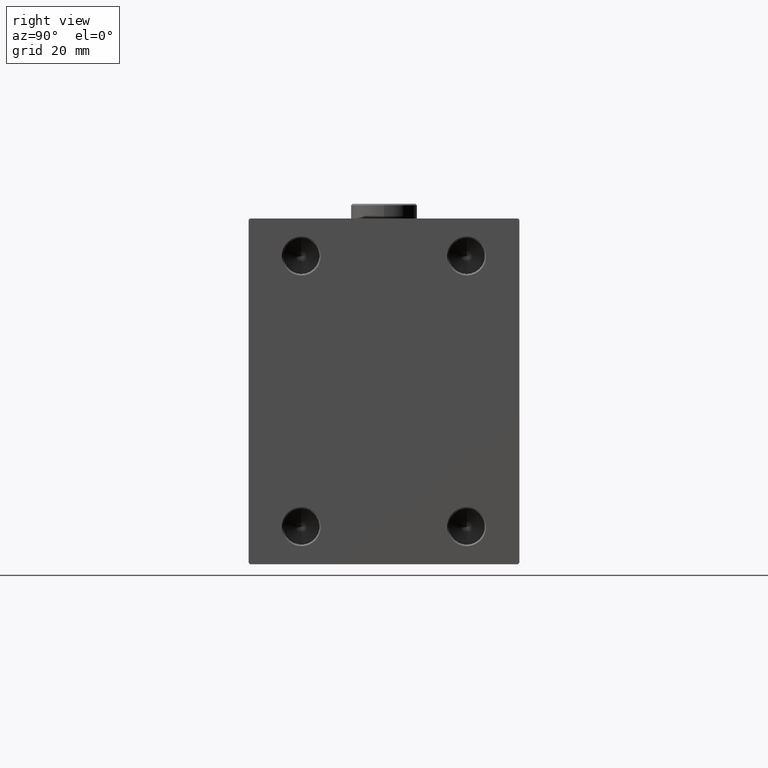
[diagram: clean part render]
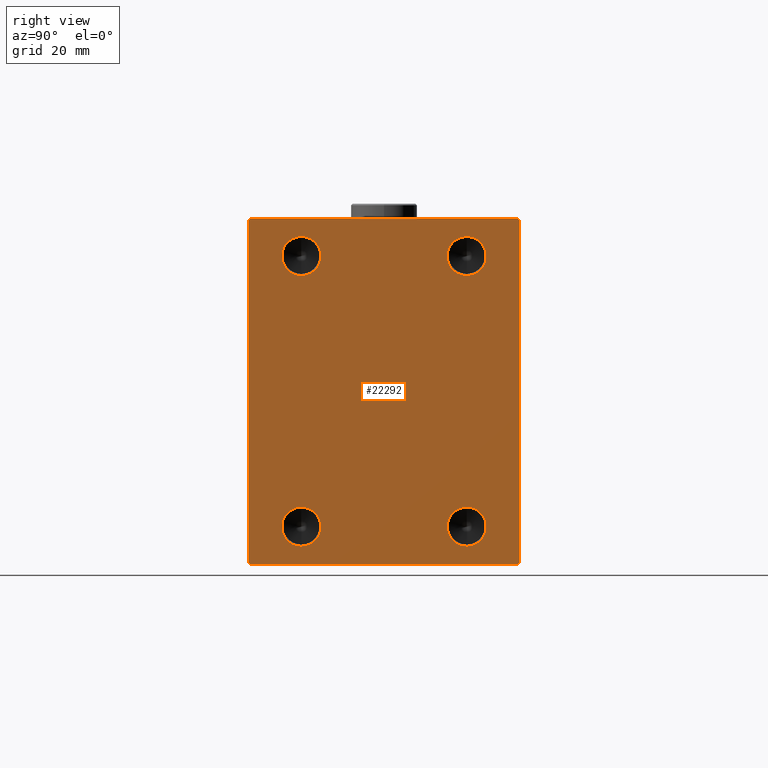
[diagram: same view with one face highlighted and labeled with its STEP entity id]
A machine part, right view. The second image highlights one B-rep face of the part: STEP entity #22292.
In plain terms, the highlighted planar face has unit normal (1, 0, 0).
Its self-contained STEP definition (entity closure, byte-faithful):
#253 = CARTESIAN_POINT ( 'NONE',  ( 178.0000000000000000, -27.49999999999999645, 51.49999999999996447 ) ) ;
#818 = VERTEX_POINT ( 'NONE', #2873 ) ;
#865 = EDGE_LOOP ( 'NONE', ( #3378, #43779 ) ) ;
#1370 = EDGE_LOOP ( 'NONE', ( #3134, #14931 ) ) ;
#1621 = DIRECTION ( 'NONE',  ( 0.000000000000000000, 0.000000000000000000, -1.000000000000000000 ) ) ;
#1756 = CARTESIAN_POINT ( 'NONE',  ( 178.0000000000000000, -45.00000000000000000, 57.49999999999999289 ) ) ;
#1778 = EDGE_LOOP ( 'NONE', ( #9437, #6071 ) ) ;
#2549 = ORIENTED_EDGE ( 'NONE', *, *, #11310, .F. ) ;
#2873 = CARTESIAN_POINT ( 'NONE',  ( 178.0000000000000000, 27.50000000000000355, 51.49999999999996447 ) ) ;
#2934 = CARTESIAN_POINT ( 'NONE',  ( 178.0000000000000000, -44.49999999999997158, -57.49999999999999289 ) ) ;
#3043 = EDGE_CURVE ( 'NONE', #27425, #11708, #42553, .T. ) ;
#3134 = ORIENTED_EDGE ( 'NONE', *, *, #21364, .F. ) ;
#3244 = ORIENTED_EDGE ( 'NONE', *, *, #27237, .T. ) ;
#3378 = ORIENTED_EDGE ( 'NONE', *, *, #17879, .F. ) ;
#4202 = EDGE_CURVE ( 'NONE', #11947, #6164, #43378, .T. ) ;
#4263 = VECTOR ( 'NONE', #22501, 1000.000000000000000 ) ;
#4458 = CARTESIAN_POINT ( 'NONE',  ( 178.0000000000000000, -27.49999999999999645, 44.99999999999998579 ) ) ;
#4462 = DIRECTION ( 'NONE',  ( -0.000000000000000000, 0.7071067811865279218, 0.7071067811865672237 ) ) ;
#5346 = EDGE_CURVE ( 'NONE', #18606, #11434, #23840, .T. ) ;
#5472 = DIRECTION ( 'NONE',  ( 0.000000000000000000, 0.000000000000000000, -1.000000000000000000 ) ) ;
#5579 = VECTOR ( 'NONE', #4462, 1000.000000000000000 ) ;
#6071 = ORIENTED_EDGE ( 'NONE', *, *, #33608, .F. ) ;
#6164 = VERTEX_POINT ( 'NONE', #36672 ) ;
#6401 = AXIS2_PLACEMENT_3D ( 'NONE', #44569, #13374, #33929 ) ;
#7643 = CARTESIAN_POINT ( 'NONE',  ( 178.0000000000000000, 45.00000000000001421, 57.00000000000000711 ) ) ;
#8026 = DIRECTION ( 'NONE',  ( 0.000000000000000000, 0.000000000000000000, -1.000000000000000000 ) ) ;
#8339 = CARTESIAN_POINT ( 'NONE',  ( 178.0000000000000000, -27.49999999999999645, -45.00000000000001421 ) ) ;
#8348 = PLANE ( 'NONE',  #14329 ) ;
#8562 = ORIENTED_EDGE ( 'NONE', *, *, #14474, .T. ) ;
#8601 = DIRECTION ( 'NONE',  ( 0.000000000000000000, 0.000000000000000000, -1.000000000000000000 ) ) ;
#8773 = CARTESIAN_POINT ( 'NONE',  ( 178.0000000000000000, 44.50000000000002842, -57.49999999999999289 ) ) ;
#8971 = DIRECTION ( 'NONE',  ( 1.000000000000000000, -0.000000000000000000, -0.000000000000000000 ) ) ;
#9095 = VERTEX_POINT ( 'NONE', #13387 ) ;
#9437 = ORIENTED_EDGE ( 'NONE', *, *, #3043, .F. ) ;
#9452 = DIRECTION ( 'NONE',  ( 0.000000000000000000, -0.7071067811865474617, -0.7071067811865474617 ) ) ;
#9904 = CARTESIAN_POINT ( 'NONE',  ( 178.0000000000000000, -51.00000000000000000, 51.00000000000000000 ) ) ;
#10494 = DIRECTION ( 'NONE',  ( 0.000000000000000000, -1.000000000000000000, -1.541976423090495140E-16 ) ) ;
#10982 = DIRECTION ( 'NONE',  ( 0.000000000000000000, 0.000000000000000000, -1.000000000000000000 ) ) ;
#11310 = EDGE_CURVE ( 'NONE', #9095, #41845, #15484, .T. ) ;
#11434 = VERTEX_POINT ( 'NONE', #25550 ) ;
#11498 = ORIENTED_EDGE ( 'NONE', *, *, #35856, .T. ) ;
#11708 = VERTEX_POINT ( 'NONE', #22044 ) ;
#11857 = CIRCLE ( 'NONE', #17778, 6.499999999999977796 ) ;
#11947 = VERTEX_POINT ( 'NONE', #12685 ) ;
#12034 = FACE_BOUND ( 'NONE', #865, .T. ) ;
#12649 = ORIENTED_EDGE ( 'NONE', *, *, #36163, .F. ) ;
#12685 = CARTESIAN_POINT ( 'NONE',  ( 178.0000000000000000, -45.00000000000000000, 56.99999999999999289 ) ) ;
#12791 = VERTEX_POINT ( 'NONE', #31745 ) ;
#13057 = VECTOR ( 'NONE', #5472, 1000.000000000000000 ) ;
#13374 = DIRECTION ( 'NONE',  ( 1.000000000000000000, -0.000000000000000000, -0.000000000000000000 ) ) ;
#13387 = CARTESIAN_POINT ( 'NONE',  ( 178.0000000000000000, -27.49999999999999645, 38.50000000000000711 ) ) ;
#14329 = AXIS2_PLACEMENT_3D ( 'NONE', #36972, #39994, #1621 ) ;
#14474 = EDGE_CURVE ( 'NONE', #14504, #18606, #27637, .T. ) ;
#14499 = CARTESIAN_POINT ( 'NONE',  ( 178.0000000000000000, -27.49999999999999645, 44.99999999999998579 ) ) ;
#14504 = VERTEX_POINT ( 'NONE', #23503 ) ;
#14931 = ORIENTED_EDGE ( 'NONE', *, *, #23861, .F. ) ;
#15157 = ORIENTED_EDGE ( 'NONE', *, *, #28651, .T. ) ;
#15348 = CARTESIAN_POINT ( 'NONE',  ( 178.0000000000000000, -45.00000000000000000, -57.49999999999999289 ) ) ;
#15484 = CIRCLE ( 'NONE', #19909, 6.499999999999977796 ) ;
#15774 = DIRECTION ( 'NONE',  ( -0.000000000000000000, -0.7071067811865474617, 0.7071067811865474617 ) ) ;
#16739 = DIRECTION ( 'NONE',  ( -0.000000000000000000, 0.7071067811865672237, -0.7071067811865279218 ) ) ;
#16765 = AXIS2_PLACEMENT_3D ( 'NONE', #8339, #36497, #18059 ) ;
#17282 = DIRECTION ( 'NONE',  ( 0.000000000000000000, 0.000000000000000000, -1.000000000000000000 ) ) ;
#17323 = ORIENTED_EDGE ( 'NONE', *, *, #4202, .T. ) ;
#17685 = DIRECTION ( 'NONE',  ( 1.000000000000000000, -0.000000000000000000, -0.000000000000000000 ) ) ;
#17778 = AXIS2_PLACEMENT_3D ( 'NONE', #39658, #28344, #8026 ) ;
#17879 = EDGE_CURVE ( 'NONE', #818, #43134, #11857, .T. ) ;
#18059 = DIRECTION ( 'NONE',  ( 0.000000000000000000, 0.000000000000000000, -1.000000000000000000 ) ) ;
#18606 = VERTEX_POINT ( 'NONE', #7643 ) ;
#18758 = DIRECTION ( 'NONE',  ( 1.000000000000000000, -0.000000000000000000, -0.000000000000000000 ) ) ;
#19725 = ORIENTED_EDGE ( 'NONE', *, *, #25360, .T. ) ;
#19909 = AXIS2_PLACEMENT_3D ( 'NONE', #14499, #39223, #17282 ) ;
#20505 = AXIS2_PLACEMENT_3D ( 'NONE', #4458, #18758, #8601 ) ;
#21364 = EDGE_CURVE ( 'NONE', #12791, #29553, #28293, .T. ) ;
#21743 = CIRCLE ( 'NONE', #23207, 6.499999999999977796 ) ;
#21870 = VECTOR ( 'NONE', #16739, 1000.000000000000000 ) ;
#21955 = VECTOR ( 'NONE', #15774, 1000.000000000000114 ) ;
#22044 = CARTESIAN_POINT ( 'NONE',  ( 178.0000000000000000, -27.49999999999999645, -51.49999999999999289 ) ) ;
#22292 = ADVANCED_FACE ( 'NONE', ( #12034, #30029, #22878, #33284, #36508 ), #8348, .T. ) ;
#22501 = DIRECTION ( 'NONE',  ( 0.000000000000000000, 1.000000000000000000, 0.000000000000000000 ) ) ;
#22552 = CARTESIAN_POINT ( 'NONE',  ( 178.0000000000000000, 27.50000000000000355, -45.00000000000001421 ) ) ;
#22757 = EDGE_CURVE ( 'NONE', #43134, #818, #21743, .T. ) ;
#22878 = FACE_BOUND ( 'NONE', #1778, .T. ) ;
#23015 = DIRECTION ( 'NONE',  ( 0.000000000000000000, 0.000000000000000000, -1.000000000000000000 ) ) ;
#23207 = AXIS2_PLACEMENT_3D ( 'NONE', #34309, #17685, #10982 ) ;
#23466 = CIRCLE ( 'NONE', #20505, 6.499999999999977796 ) ;
#23503 = CARTESIAN_POINT ( 'NONE',  ( 178.0000000000000000, 45.00000000000002842, -56.99999999999996447 ) ) ;
#23840 = LINE ( 'NONE', #41184, #21955 ) ;
#23861 = EDGE_CURVE ( 'NONE', #29553, #12791, #35019, .T. ) ;
#24484 = EDGE_CURVE ( 'NONE', #11434, #36895, #32177, .T. ) ;
#24892 = CIRCLE ( 'NONE', #16765, 6.499999999999977796 ) ;
#25185 = VECTOR ( 'NONE', #44776, 1000.000000000000000 ) ;
#25272 = CARTESIAN_POINT ( 'NONE',  ( 178.0000000000000000, 27.50000000000000355, 38.50000000000000711 ) ) ;
#25360 = EDGE_CURVE ( 'NONE', #27949, #14504, #39130, .T. ) ;
#25550 = CARTESIAN_POINT ( 'NONE',  ( 178.0000000000000000, 44.50000000000001421, 57.50000000000000711 ) ) ;
#26035 = CARTESIAN_POINT ( 'NONE',  ( 178.0000000000000000, 27.50000000000000355, -45.00000000000001421 ) ) ;
#26705 = DIRECTION ( 'NONE',  ( 1.000000000000000000, -0.000000000000000000, -0.000000000000000000 ) ) ;
#27237 = EDGE_CURVE ( 'NONE', #36895, #11947, #44572, .T. ) ;
#27425 = VERTEX_POINT ( 'NONE', #29708 ) ;
#27637 = LINE ( 'NONE', #45236, #25185 ) ;
#27949 = VERTEX_POINT ( 'NONE', #8773 ) ;
#28293 = CIRCLE ( 'NONE', #34201, 6.499999999999977796 ) ;
#28344 = DIRECTION ( 'NONE',  ( 1.000000000000000000, -0.000000000000000000, -0.000000000000000000 ) ) ;
#28651 = EDGE_CURVE ( 'NONE', #6164, #37862, #34283, .T. ) ;
#29553 = VERTEX_POINT ( 'NONE', #31697 ) ;
#29708 = CARTESIAN_POINT ( 'NONE',  ( 178.0000000000000000, -27.49999999999999645, -38.50000000000003553 ) ) ;
#30029 = FACE_BOUND ( 'NONE', #34139, .T. ) ;
#30634 = VECTOR ( 'NONE', #10494, 1000.000000000000000 ) ;
#31697 = CARTESIAN_POINT ( 'NONE',  ( 178.0000000000000000, 27.50000000000000355, -51.49999999999999289 ) ) ;
#31745 = CARTESIAN_POINT ( 'NONE',  ( 178.0000000000000000, 27.50000000000000355, -38.50000000000003553 ) ) ;
#32177 = LINE ( 'NONE', #42141, #30634 ) ;
#33284 = FACE_BOUND ( 'NONE', #1370, .T. ) ;
#33608 = EDGE_CURVE ( 'NONE', #11708, #27425, #24892, .T. ) ;
#33825 = LINE ( 'NONE', #15348, #4263 ) ;
#33929 = DIRECTION ( 'NONE',  ( 0.000000000000000000, 0.000000000000000000, -1.000000000000000000 ) ) ;
#34139 = EDGE_LOOP ( 'NONE', ( #12649, #2549 ) ) ;
#34201 = AXIS2_PLACEMENT_3D ( 'NONE', #26035, #8971, #43851 ) ;
#34283 = LINE ( 'NONE', #44479, #21870 ) ;
#34309 = CARTESIAN_POINT ( 'NONE',  ( 178.0000000000000000, 27.50000000000000355, 44.99999999999998579 ) ) ;
#35019 = CIRCLE ( 'NONE', #40935, 6.499999999999977796 ) ;
#35856 = EDGE_CURVE ( 'NONE', #37862, #27949, #33825, .T. ) ;
#36097 = CARTESIAN_POINT ( 'NONE',  ( 178.0000000000000000, 51.00000000000125056, -50.99999999999841549 ) ) ;
#36163 = EDGE_CURVE ( 'NONE', #41845, #9095, #23466, .T. ) ;
#36241 = EDGE_LOOP ( 'NONE', ( #39651, #3244, #17323, #15157, #11498, #19725, #8562, #38666 ) ) ;
#36497 = DIRECTION ( 'NONE',  ( 1.000000000000000000, -0.000000000000000000, -0.000000000000000000 ) ) ;
#36508 = FACE_OUTER_BOUND ( 'NONE', #36241, .T. ) ;
#36672 = CARTESIAN_POINT ( 'NONE',  ( 178.0000000000000000, -45.00000000000000000, -56.99999999999999289 ) ) ;
#36895 = VERTEX_POINT ( 'NONE', #38671 ) ;
#36972 = CARTESIAN_POINT ( 'NONE',  ( 178.0000000000000000, 0.000000000000000000, 0.000000000000000000 ) ) ;
#37862 = VERTEX_POINT ( 'NONE', #2934 ) ;
#38666 = ORIENTED_EDGE ( 'NONE', *, *, #5346, .T. ) ;
#38671 = CARTESIAN_POINT ( 'NONE',  ( 178.0000000000000000, -44.49999999999997158, 57.49999999999999289 ) ) ;
#39130 = LINE ( 'NONE', #36097, #5579 ) ;
#39223 = DIRECTION ( 'NONE',  ( 1.000000000000000000, -0.000000000000000000, -0.000000000000000000 ) ) ;
#39651 = ORIENTED_EDGE ( 'NONE', *, *, #24484, .T. ) ;
#39658 = CARTESIAN_POINT ( 'NONE',  ( 178.0000000000000000, 27.50000000000000355, 44.99999999999998579 ) ) ;
#39994 = DIRECTION ( 'NONE',  ( 1.000000000000000000, 0.000000000000000000, 0.000000000000000000 ) ) ;
#40935 = AXIS2_PLACEMENT_3D ( 'NONE', #22552, #26705, #23015 ) ;
#41184 = CARTESIAN_POINT ( 'NONE',  ( 178.0000000000000000, 51.00000000000000711, 51.00000000000000711 ) ) ;
#41845 = VERTEX_POINT ( 'NONE', #253 ) ;
#42141 = CARTESIAN_POINT ( 'NONE',  ( 178.0000000000000000, 45.00000000000001421, 57.50000000000000711 ) ) ;
#42553 = CIRCLE ( 'NONE', #6401, 6.499999999999977796 ) ;
#43134 = VERTEX_POINT ( 'NONE', #25272 ) ;
#43378 = LINE ( 'NONE', #1756, #13057 ) ;
#43779 = ORIENTED_EDGE ( 'NONE', *, *, #22757, .F. ) ;
#43851 = DIRECTION ( 'NONE',  ( 0.000000000000000000, 0.000000000000000000, -1.000000000000000000 ) ) ;
#43968 = VECTOR ( 'NONE', #9452, 1000.000000000000114 ) ;
#44479 = CARTESIAN_POINT ( 'NONE',  ( 178.0000000000000000, -50.99999999999874944, -51.00000000000158451 ) ) ;
#44569 = CARTESIAN_POINT ( 'NONE',  ( 178.0000000000000000, -27.49999999999999645, -45.00000000000001421 ) ) ;
#44572 = LINE ( 'NONE', #9904, #43968 ) ;
#44776 = DIRECTION ( 'NONE',  ( 0.000000000000000000, -1.206764157201257045E-16, 1.000000000000000000 ) ) ;
#45236 = CARTESIAN_POINT ( 'NONE',  ( 178.0000000000000000, 45.00000000000002842, -57.49999999999999289 ) ) ;